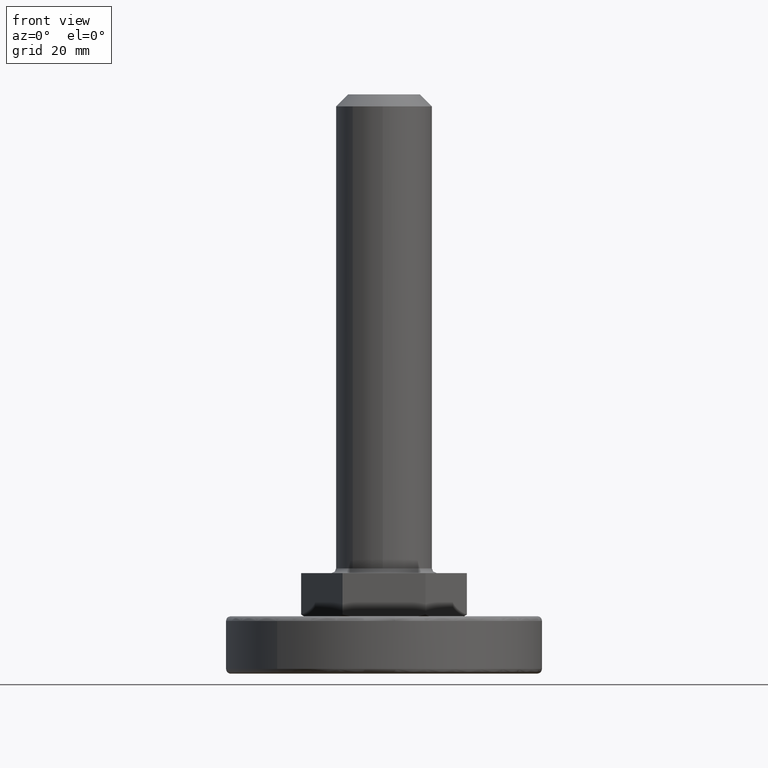
[diagram: clean part render]
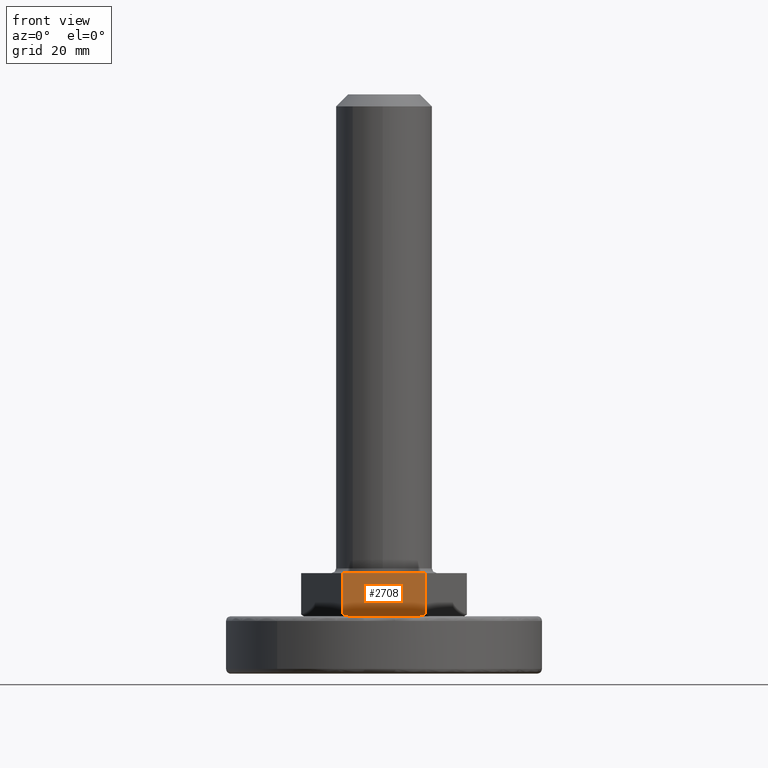
[diagram: same view with one face highlighted and labeled with its STEP entity id]
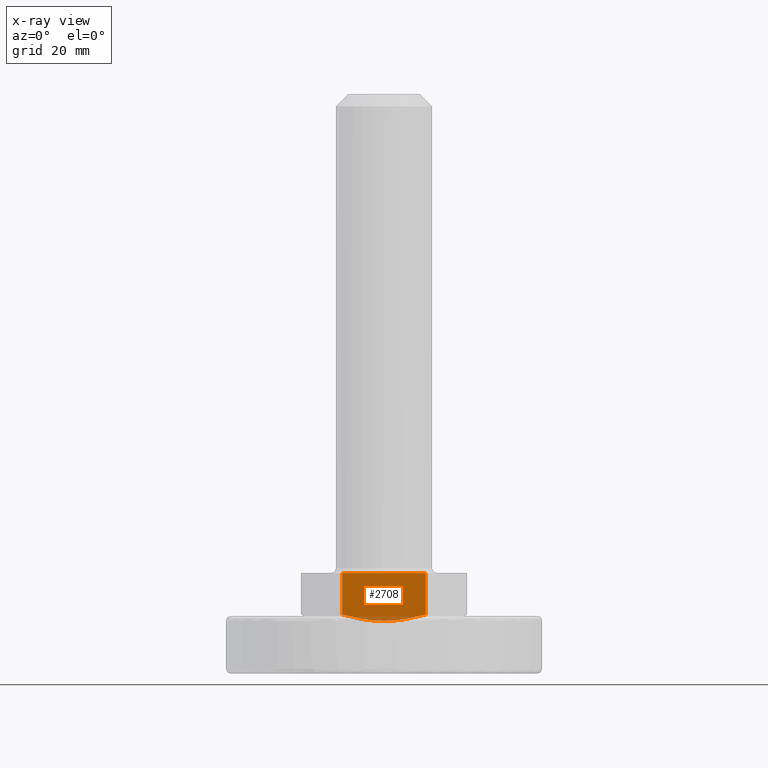
[diagram: x-ray of the same camera — body ghosted, the highlighted face saturated]
A machine part, front view. The second image highlights one B-rep face of the part: STEP entity #2708.
The next image is the same camera in x-ray: the body ghosted, the highlighted face saturated — about 5% of this face is hidden behind the body in this view.
In plain terms, the highlighted face is a freeform B-spline surface patch.
Its self-contained STEP definition (entity closure, byte-faithful):
#2260=CARTESIAN_POINT('',(0.0,-15.0,11.0));
#2261=VERTEX_POINT('',#2260);
#2262=CARTESIAN_POINT('',(8.660253999999998,-15.0,12.339745984005100));
#2263=VERTEX_POINT('',#2262);
#2264=CARTESIAN_POINT('',(0.0,-15.0,11.0));
#2265=CARTESIAN_POINT('',(0.000885944833046,-15.0,11.000000032998260));
#2266=CARTESIAN_POINT('',(0.001771892556042,-15.0,11.000000078090300));
#2267=CARTESIAN_POINT('',(0.734667724101195,-15.0,11.000075053665389));
#2268=CARTESIAN_POINT('',(1.469053716768399,-15.0,11.031252072300120));
#2269=CARTESIAN_POINT('',(2.389968569798176,-15.0,11.108606514653991));
#2270=CARTESIAN_POINT('',(2.574135612397030,-15.0,11.125977796633530));
#2271=CARTESIAN_POINT('',(2.941106985891011,-15.0,11.164286473452480));
#2272=CARTESIAN_POINT('',(3.490102416328993,-15.0,11.227144660431490));
#2273=CARTESIAN_POINT('',(4.034871045434544,-15.0,11.305604827540741));
#2274=CARTESIAN_POINT('',(5.842115343304100,-15.0,11.599071800743930));
#2275=CARTESIAN_POINT('',(7.260337260589070,-15.0,11.935624832158570));
#2276=CARTESIAN_POINT('',(8.660254000000004,-15.0,12.339745984005081));
#2277=B_SPLINE_CURVE_WITH_KNOTS('',3,(#2264,#2265,#2266,#2267,#2268,#2269,#2270,#2271,#2272,#2273,#2274,#2275,#2276),.UNSPECIFIED.,.F.,.U.,(4,2,2,2,1,2,4),(0.499848712560787,0.500000000000000,0.625000000000000,0.656250000000000,0.687500000000000,0.750000000000000,1.0),.UNSPECIFIED.);
#2278=EDGE_CURVE('',#2261,#2263,#2277,.T.);
#2327=CARTESIAN_POINT('',(-8.660253999999998,-15.0,12.339745984005081));
#2328=VERTEX_POINT('',#2327);
#2357=CARTESIAN_POINT('',(-8.660253999999998,-15.0,12.339745984005081));
#2358=CARTESIAN_POINT('',(-7.955715475660655,-15.0,12.136363231330760));
#2359=CARTESIAN_POINT('',(-7.244695333077864,-15.0,11.949648155832200));
#2360=CARTESIAN_POINT('',(-5.806268739745859,-15.0,11.618355891449490));
#2361=CARTESIAN_POINT('',(-5.085058804000953,-15.0,11.475312389313441));
#2362=CARTESIAN_POINT('',(-3.638862233223499,-15.0,11.242165429196120));
#2363=CARTESIAN_POINT('',(-2.913740165228776,-15.0,11.152082261289070));
#2364=CARTESIAN_POINT('',(-1.459867087924154,-15.0,11.031013544603701));
#2365=CARTESIAN_POINT('',(-0.731118186713208,-15.0,11.000000401853960));
#2366=CARTESIAN_POINT('',(0.0,-15.0,11.0));
#2367=B_SPLINE_CURVE_WITH_KNOTS('',3,(#2357,#2358,#2359,#2360,#2361,#2362,#2363,#2364,#2365,#2366),.UNSPECIFIED.,.F.,.U.,(4,2,2,2,4),(0.0,0.125000000000000,0.250000000000000,0.375000000000000,0.499848712528853),.UNSPECIFIED.);
#2368=EDGE_CURVE('',#2328,#2261,#2367,.T.);
#2625=CARTESIAN_POINT('',(-8.660253999999998,-15.0,21.0));
#2626=VERTEX_POINT('',#2625);
#2634=CARTESIAN_POINT('',(8.660253999999998,-15.0,21.0));
#2635=VERTEX_POINT('',#2634);
#2636=CARTESIAN_POINT('',(8.660253999999998,-15.0,21.0));
#2637=CARTESIAN_POINT('',(-8.660253999999998,-15.0,21.0));
#2638=QUASI_UNIFORM_CURVE('',1,(#2636,#2637),.UNSPECIFIED.,.F.,.U.);
#2639=EDGE_CURVE('',#2635,#2626,#2638,.T.);
#2688=CARTESIAN_POINT('',(-9.525412791370863,-15.0,21.499499980618069));
#2689=CARTESIAN_POINT('',(-9.525412791370863,-15.0,10.500499751161041));
#2690=CARTESIAN_POINT('',(9.525412481656044,-15.0,21.499499980618069));
#2691=CARTESIAN_POINT('',(9.525412481656044,-15.0,10.500499751161041));
#2692=B_SPLINE_SURFACE_WITH_KNOTS('',1,1,((#2688,#2690),(#2689,#2691)),.UNSPECIFIED.,.F.,.F.,.U.,(2,2),(2,2),(0.0,10.999000229457030),(0.0,19.050825273026909),.UNSPECIFIED.);
#2693=CARTESIAN_POINT('',(-8.660253999999998,-15.0,21.0));
#2694=CARTESIAN_POINT('',(-8.660253999999998,-15.0,12.339745984005081));
#2695=QUASI_UNIFORM_CURVE('',1,(#2693,#2694),.UNSPECIFIED.,.F.,.U.);
#2696=EDGE_CURVE('',#2626,#2328,#2695,.T.);
#2697=ORIENTED_EDGE('',*,*,#2696,.T.);
#2698=ORIENTED_EDGE('',*,*,#2368,.T.);
#2699=ORIENTED_EDGE('',*,*,#2278,.T.);
#2700=CARTESIAN_POINT('',(8.660253999999998,-15.0,21.0));
#2701=CARTESIAN_POINT('',(8.660253999999998,-15.0,12.339745984005100));
#2702=QUASI_UNIFORM_CURVE('',1,(#2700,#2701),.UNSPECIFIED.,.F.,.U.);
#2703=EDGE_CURVE('',#2635,#2263,#2702,.T.);
#2704=ORIENTED_EDGE('',*,*,#2703,.F.);
#2705=ORIENTED_EDGE('',*,*,#2639,.T.);
#2706=EDGE_LOOP('',(#2697,#2698,#2699,#2704,#2705));
#2707=FACE_OUTER_BOUND('',#2706,.T.);
#2708=ADVANCED_FACE('',(#2707),#2692,.T.);